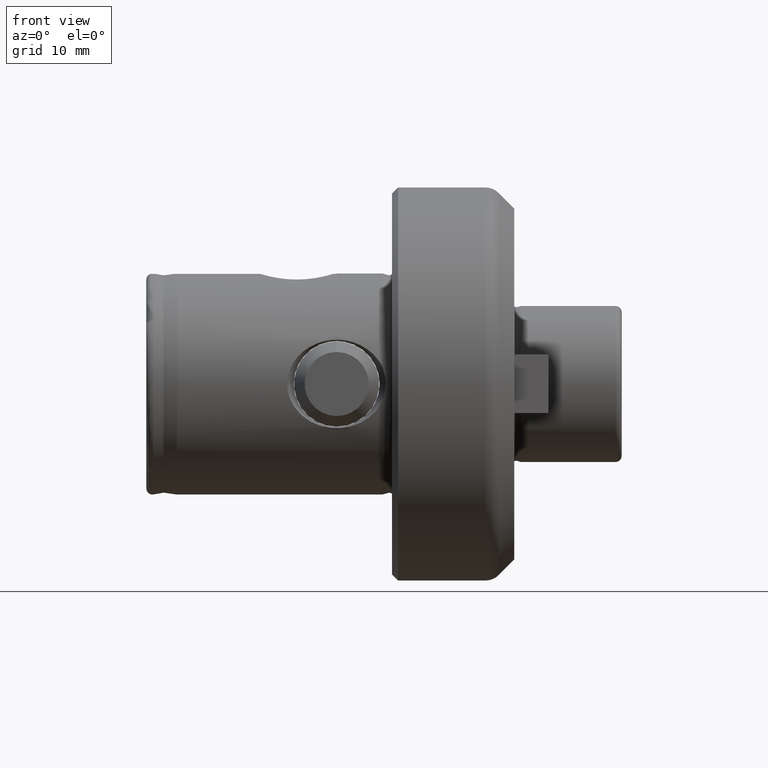
[diagram: clean part render]
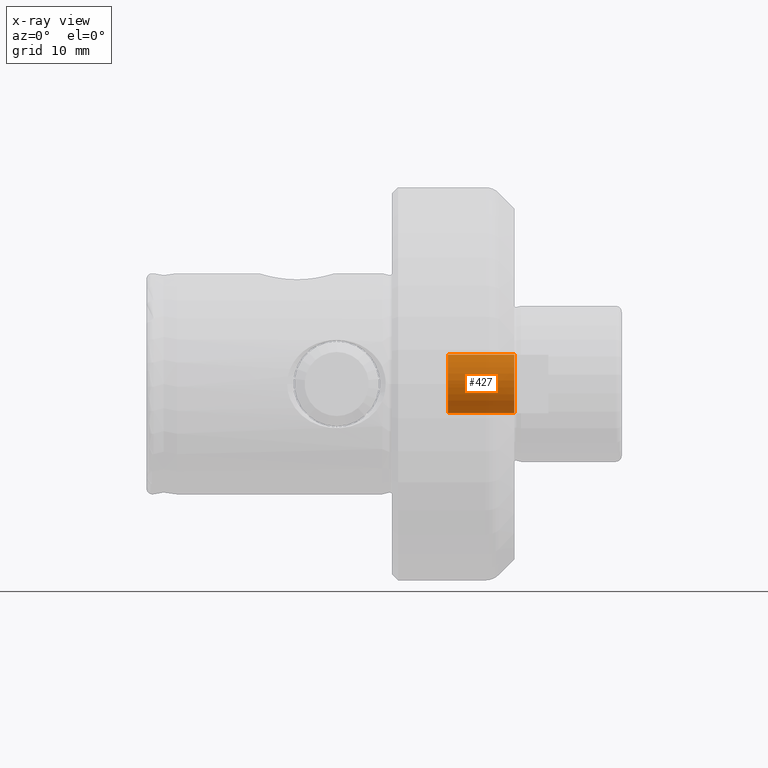
[diagram: x-ray — body ghosted, one internal face saturated and labeled with its STEP entity id]
A machine part, front view, then the same camera in x-ray: the body is ghosted and one INTERNAL B-rep face — a face not visible from any outside direction — is saturated and labeled: STEP entity #427.
In plain terms, the highlighted cylindrical surface (edge-blend (fillet) strip) has radius 4.7612 mm, axis along (1, 0, 0).
Its self-contained STEP definition (entity closure, byte-faithful):
#76 = CARTESIAN_POINT ( 'NONE',  ( 49.11000000000001400, 21.43000000000000000, -4.761250000000002200 ) ) ;
#85 = CARTESIAN_POINT ( 'NONE',  ( 59.91000000000001800, 21.43000000000000000, -4.761250000000002200 ) ) ;
#427 = ADVANCED_FACE ( 'NONE', ( #2662 ), #2694, .F. ) ;
#462 = AXIS2_PLACEMENT_3D ( 'NONE', #4207, #4208, #4209 ) ;
#1095 = AXIS2_PLACEMENT_3D ( 'NONE', #2644, #2706, #2720 ) ;
#1166 = VECTOR ( 'NONE', #4215, 1000.000000000000000 ) ;
#1314 = CIRCLE ( 'NONE', #1318, 4.761249999999997800 ) ;
#1318 = AXIS2_PLACEMENT_3D ( 'NONE', #4111, #4112, #4113 ) ;
#1362 = ORIENTED_EDGE ( 'NONE', *, *, #2595, .F. ) ;
#1363 = ORIENTED_EDGE ( 'NONE', *, *, #2592, .T. ) ;
#1403 = ORIENTED_EDGE ( 'NONE', *, *, #2569, .F. ) ;
#1404 = ORIENTED_EDGE ( 'NONE', *, *, #2591, .T. ) ;
#1579 = VERTEX_POINT ( 'NONE', #85 ) ;
#1593 = VERTEX_POINT ( 'NONE', #76 ) ;
#1611 = VERTEX_POINT ( 'NONE', #1898 ) ;
#1616 = VERTEX_POINT ( 'NONE', #1733 ) ;
#1733 = CARTESIAN_POINT ( 'NONE',  ( 49.11000000000001400, 21.43000000000000000, 4.761249999999994200 ) ) ;
#1898 = CARTESIAN_POINT ( 'NONE',  ( 59.91000000000001800, 21.43000000000000000, 4.761249999999994200 ) ) ;
#2489 = VECTOR ( 'NONE', #4204, 1000.000000000000000 ) ;
#2491 = CIRCLE ( 'NONE', #462, 4.761249999999997800 ) ;
#2569 = EDGE_CURVE ( 'NONE', #1616, #1593, #1314, .T. ) ;
#2591 = EDGE_CURVE ( 'NONE', #1616, #1611, #4199, .T. ) ;
#2592 = EDGE_CURVE ( 'NONE', #1611, #1579, #2491, .T. ) ;
#2595 = EDGE_CURVE ( 'NONE', #1593, #1579, #4205, .T. ) ;
#2644 = CARTESIAN_POINT ( 'NONE',  ( 59.91000000000001800, 21.43000000000000000, -4.119711832331695800E-015 ) ) ;
#2662 = FACE_OUTER_BOUND ( 'NONE', #2765, .T. ) ;
#2694 = CYLINDRICAL_SURFACE ( 'NONE', #1095, 4.761249999999997800 ) ;
#2706 = DIRECTION ( 'NONE',  ( 1.000000000000000000, -0.0000000000000000000, -0.0000000000000000000 ) ) ;
#2720 = DIRECTION ( 'NONE',  ( 0.0000000000000000000, 0.0000000000000000000, -1.000000000000000000 ) ) ;
#2765 = EDGE_LOOP ( 'NONE', ( #1403, #1404, #1363, #1362 ) ) ;
#4111 = CARTESIAN_POINT ( 'NONE',  ( 49.11000000000001400, 21.43000000000000000, -4.119711832331695800E-015 ) ) ;
#4112 = DIRECTION ( 'NONE',  ( 1.000000000000000000, -0.0000000000000000000, -0.0000000000000000000 ) ) ;
#4113 = DIRECTION ( 'NONE',  ( 0.0000000000000000000, 0.0000000000000000000, -1.000000000000000000 ) ) ;
#4194 = CARTESIAN_POINT ( 'NONE',  ( 59.91000000000001800, 21.43000000000000000, 4.761249999999994200 ) ) ;
#4199 = LINE ( 'NONE', #4194, #2489 ) ;
#4204 = DIRECTION ( 'NONE',  ( 1.000000000000000000, -0.0000000000000000000, -0.0000000000000000000 ) ) ;
#4205 = LINE ( 'NONE', #4206, #1166 ) ;
#4206 = CARTESIAN_POINT ( 'NONE',  ( 59.91000000000001800, 21.43000000000000000, -4.761250000000002200 ) ) ;
#4207 = CARTESIAN_POINT ( 'NONE',  ( 59.91000000000001800, 21.43000000000000000, -4.119711832331695800E-015 ) ) ;
#4208 = DIRECTION ( 'NONE',  ( 1.000000000000000000, -0.0000000000000000000, -0.0000000000000000000 ) ) ;
#4209 = DIRECTION ( 'NONE',  ( 0.0000000000000000000, 0.0000000000000000000, -1.000000000000000000 ) ) ;
#4215 = DIRECTION ( 'NONE',  ( 1.000000000000000000, -0.0000000000000000000, -0.0000000000000000000 ) ) ;